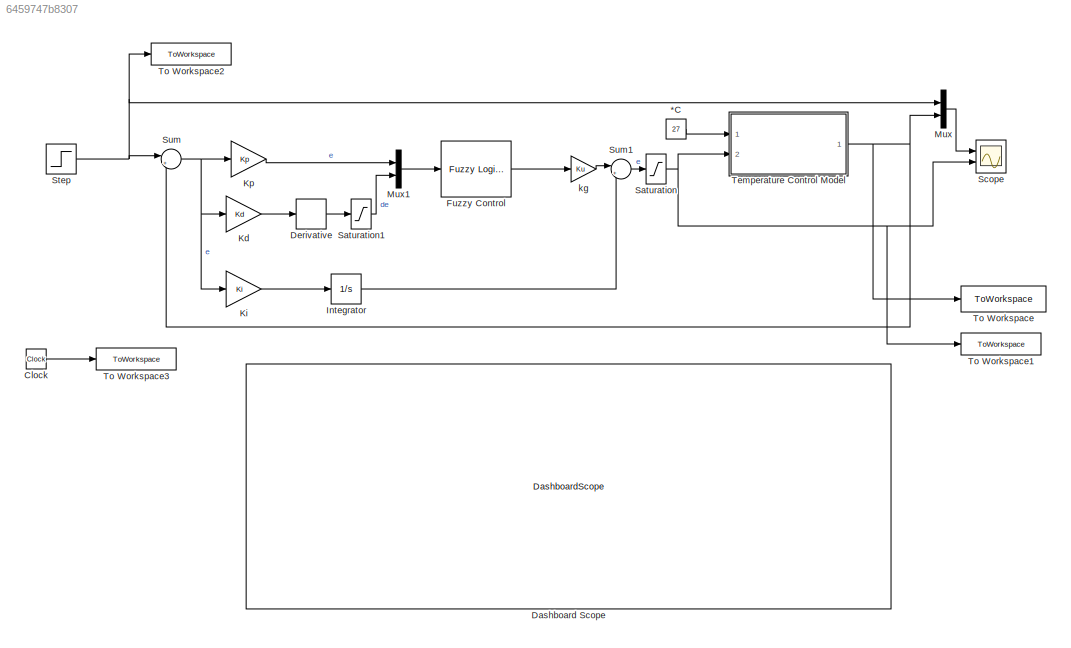
MODEL slx_6459747b8307
KIND model
CONFIG AbsTol = auto
CONFIG EnableMultiTasking = off
CONFIG FixedStep = auto
CONFIG MaxStep = auto
CONFIG MinStep = auto
CONFIG RelTol = 1e-3
CONFIG SampleTimeConstraint = Unconstrained
CONFIG Solver = VariableStepAuto
CONFIG SolverName = VariableStepAuto
CONFIG StartTime = 0.0
CONFIG StopTime = 300
BLOCK [Constant] *C
  Value = 27
BLOCK [Clock] Clock
BLOCK [DashboardScope] Dashboard Scope
  ScaleAtStop = off
  Ymax = 70
  Ymin = 23
BLOCK [Derivative] Derivative
BLOCK [Reference] Fuzzy Control  REF=fuzblock/Fuzzy Logic   (lib defined in mdl_858b3b3e7478)
Controller
  Ports = [1, 1]
  SourceBlock = fuzblock/Fuzzy Logic \nController
  SourceProductBaseCode = FL
  SourceType = Fuzzy Inference System
BLOCK [Integrator] Integrator
  Ports = [1, 1]
BLOCK [Gain] Kd
  Gain = Kd
BLOCK [Gain] Ki
  Gain = Ki
BLOCK [Gain] Kp
  Gain = Kp
BLOCK [Mux] Mux
  DisplayOption = bar
  Inputs = 2
  Ports = [2, 1]
BLOCK [Mux] Mux1
  DisplayOption = bar
  Inputs = 2
  Ports = [2, 1]
BLOCK [Saturate] Saturation
  LowerLimit = 0
  UpperLimit = 100
BLOCK [Saturate] Saturation1
  LowerLimit = -6
  UpperLimit = 6
BLOCK [Scope] Scope
  Floating = off
  NumInputPorts = 2
  Ports = [2]
  ScopeSpecificationString = Simulink.scopes.TimeScopeBlockCfg('CurrentConfiguration', extmgr.ConfigurationSet(extmgr.Configuration('Core','General UI',true),extmgr.Configuration('Core','Source UI',true),extmgr.Configuration('Sources','WiredSimulink',true),extmgr.Configuration('Visuals','Time Domain',true,'SerializedDisplays',{struct('MinYLimReal','18.98517','MaxYLimReal','99.13344','YLabelReal','','MinYLimMag','18.98517','Ma...<+2103ch>
BLOCK [Step] Step
  After = 55
  Before = 27
  SampleTime = 0
BLOCK [Sum] Sum
  Inputs = |+-
  Ports = [2, 1]
BLOCK [Sum] Sum1
  Inputs = |++
  Ports = [2, 1]
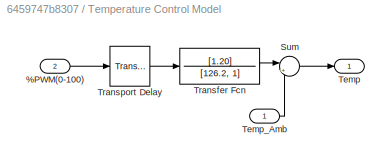
BLOCK [SubSystem] Temperature Control Model
  Ports = [2, 1]
  RequestExecContextInheritance = off
BLOCK [Inport] Temperature Control Model/%PWM(0-100)
  Port = 2
BLOCK [Sum] Temperature Control Model/Sum
  Inputs = |++
  Ports = [2, 1]
BLOCK [Outport] Temperature Control Model/Temp
BLOCK [Inport] Temperature Control Model/Temp_Amb
BLOCK [TransferFcn] Temperature Control Model/Transfer Fcn
  Denominator = [126.2, 1]
  Numerator = [1.20]
BLOCK [TransportDelay] Temperature Control Model/Transport Delay
  DelayTime = 14.23
  Ports = [1, 1]
BLOCK [ToWorkspace] To Workspace
  FixptAsFi = on
  MaxDataPoints = inf
  Ports = [1]
  SampleTime = 1
  Save2DSignal = 2-D array (concatenate along first dimension)
  VariableName = tempModelo
BLOCK [ToWorkspace] To Workspace1
  FixptAsFi = on
  MaxDataPoints = inf
  Ports = [1]
  SampleTime = 1
  Save2DSignal = 2-D array (concatenate along first dimension)
  VariableName = uModelo
BLOCK [ToWorkspace] To Workspace2
  FixptAsFi = on
  MaxDataPoints = inf
  Ports = [1]
  SampleTime = 1
  Save2DSignal = 2-D array (concatenate along first dimension)
  VariableName = ref
BLOCK [ToWorkspace] To Workspace3
  FixptAsFi = on
  MaxDataPoints = inf
  Ports = [1]
  SampleTime = 1
  Save2DSignal = 2-D array (concatenate along first dimension)
  VariableName = time
BLOCK [Gain] kg
  Gain = Ku
LINE *C:1 -> Temperature Control Model:1
LINE Clock:1 -> To Workspace3:1
LINE Derivative:1 -> Saturation1:1
LINE Fuzzy Control:1 -> kg:1
LINE Integrator:1 -> Sum1:2
LINE Kd:1 -> Derivative:1
LINE Ki:1 -> Integrator:1
LINE Kp:1 -> Mux1:1
LINE Mux1:1 -> Fuzzy Control:1
LINE Mux:1 -> Scope:1
LINE Saturation1:1 -> Mux1:2
NET Saturation:1 -> Scope:2, Temperature Control Model:2, To Workspace1:1
NET Step:1 -> Mux:1, Sum:1, To Workspace2:1
LINE Sum1:1 -> Saturation:1
NET Sum:1 -> Kd:1, Ki:1, Kp:1
LINE Temperature Control Model/%PWM(0-100):1 -> Temperature Control Model/Transport Delay:1
LINE Temperature Control Model/Sum:1 -> Temperature Control Model/Temp:1
LINE Temperature Control Model/Temp_Amb:1 -> Temperature Control Model/Sum:2
LINE Temperature Control Model/Transfer Fcn:1 -> Temperature Control Model/Sum:1
LINE Temperature Control Model/Transport Delay:1 -> Temperature Control Model/Transfer Fcn:1
NET Temperature Control Model:1 -> Mux:2, Sum:2, To Workspace:1
LINE kg:1 -> Sum1:1
note: NET lines group one-source signal fan-out (src -> all destinations, sorted); 1:1 wires keep LINE
